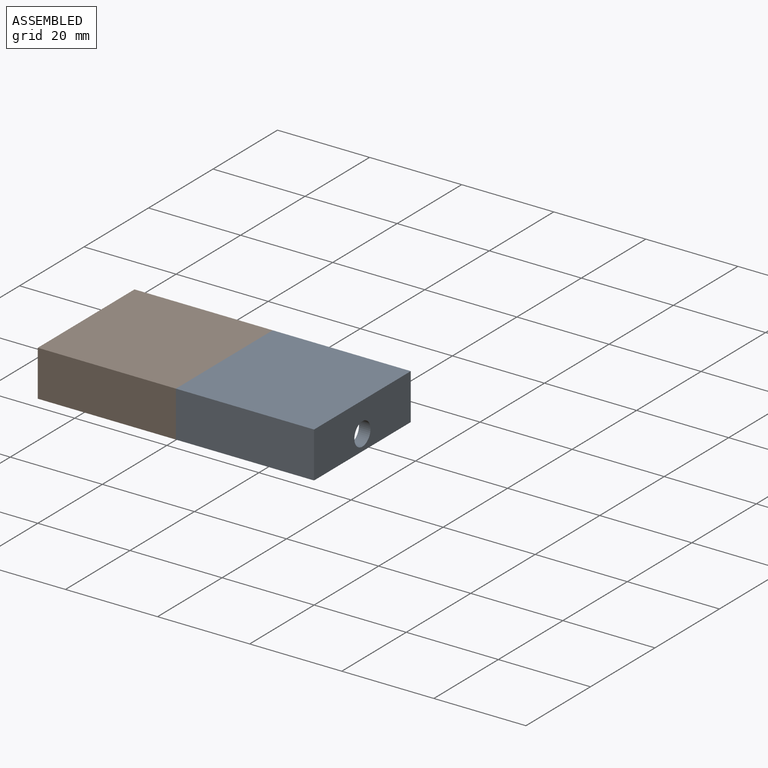
[diagram: assembled view]
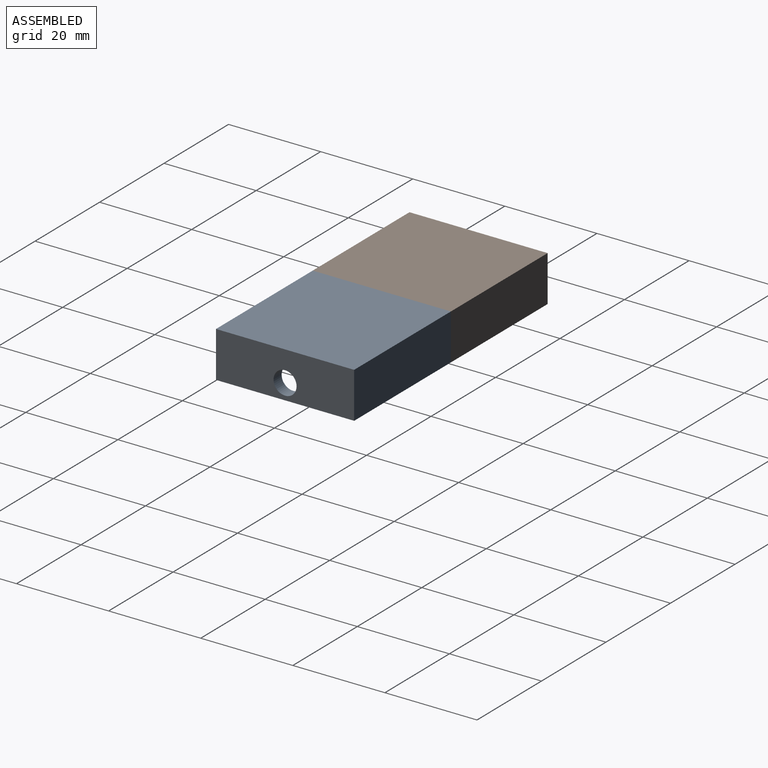
[diagram: assembled view, second angle]
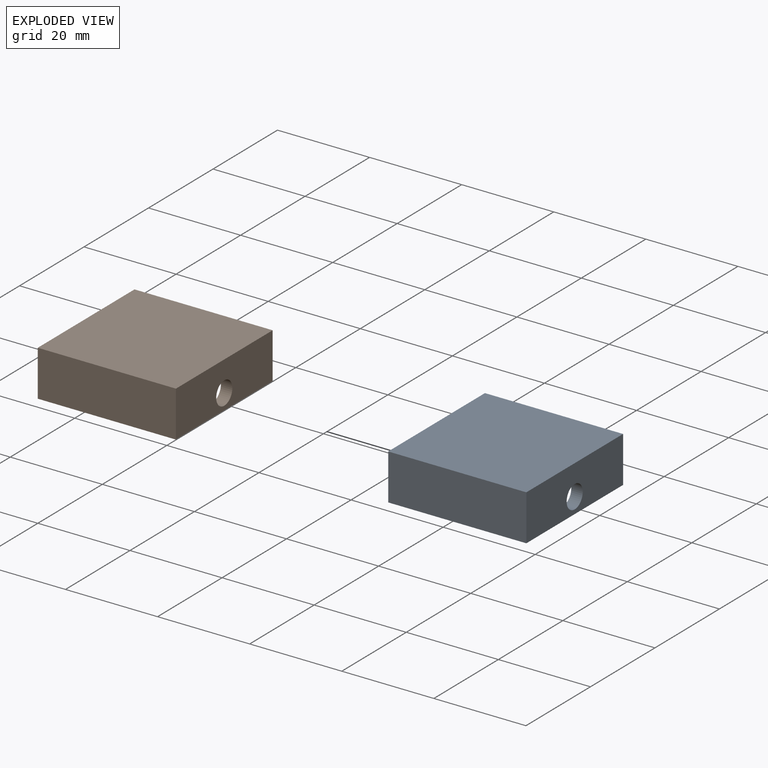
[diagram: exploded view]
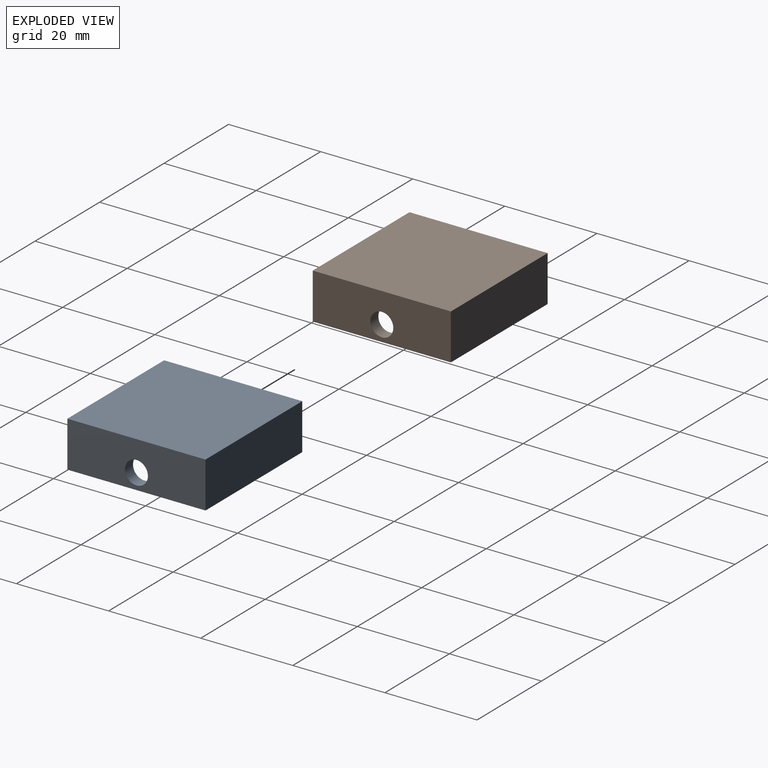
[diagram: exploded view, second angle]
ASSEMBLY  parts=2 mates=2
PART A: 13 faces, bbox 30x30x10 mm
  f0: plane 30x30mm, normal (0,0,1), area 250mm2, adj f1,f2,f3,f4,f6,f7,f8,f11
  f1: plane 30x10mm, normal (0,-1,0), area 300mm2, adj f0,f2,f4,f5
  f2: plane 30x10mm, normal (1,0,0), area 300mm2, adj f0,f1,f3,f5
  f3: plane 30x10mm, normal (0,1,0), area 280.4mm2, adj f0,f2,f4,f5,f12
  f4: plane 30x10mm, normal (-1,0,0), area 300mm2, adj f0,f1,f3,f5
  f5: plane 30x30mm, normal (0,0,-1), area 900mm2, adj f1,f2,f3,f4
  f6: plane 26x7.5mm, normal (0,1,0), area 187.7mm2, adj f0,f7,f9,f10,f11
  f7: plane 25x7.5mm, normal (-1,0,0), area 187.5mm2, adj f0,f6,f8,f10
  f8: plane 26x7.5mm, normal (0,-1,0), area 168.1mm2, adj f0,f7,f9,f10,f11,f12
  f9: plane 25x6.5mm, normal (1,0,0), area 162.5mm2, adj f6,f8,f10,f11
  f10: plane 25x25mm, normal (0,0,1), area 625mm2, adj f6,f7,f8,f9
  f11: cylinder r=1mm len=25mm, axis (0,-1,0), area 39.3mm2, adj f0,f6,f8,f9
  f12: cylinder r=2.5mm len=5mm, axis (0,-1,0), area 39.3mm2, adj f3,f8
PART B: same geometry as A
PLACE A rot(axis=(0.71,0.71,0),180deg) t=(-43.82,16.14,7.2)mm
PLACE B rot(axis=(0.71,0.71,0),180deg) t=(-73.82,16.14,7.2)mm
MATE planar A.f2 <-> B.f2  axis (0,1,0) through (-43.82,31.14,2.2)mm
MATE planar B.f3 <-> A.f1  axis (1,0,0) through (-58.82,16.14,2.31)mm
